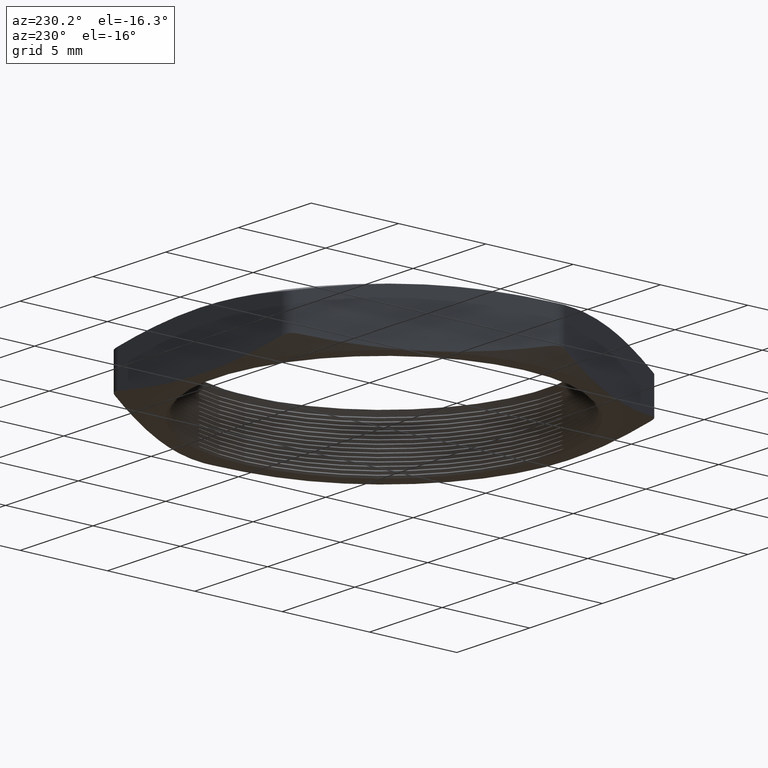
[diagram: clean part render]
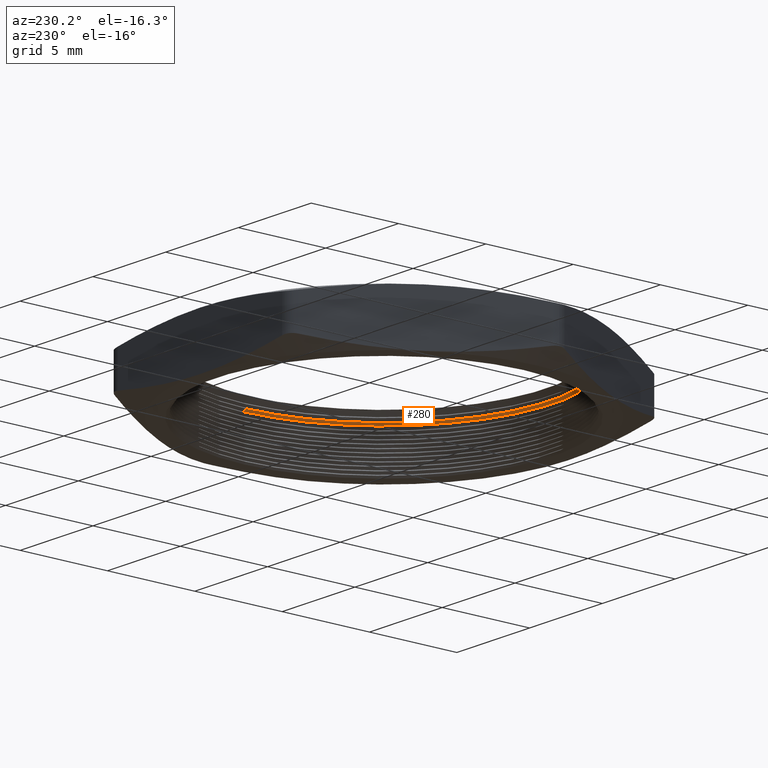
[diagram: same view with one face highlighted and labeled with its STEP entity id]
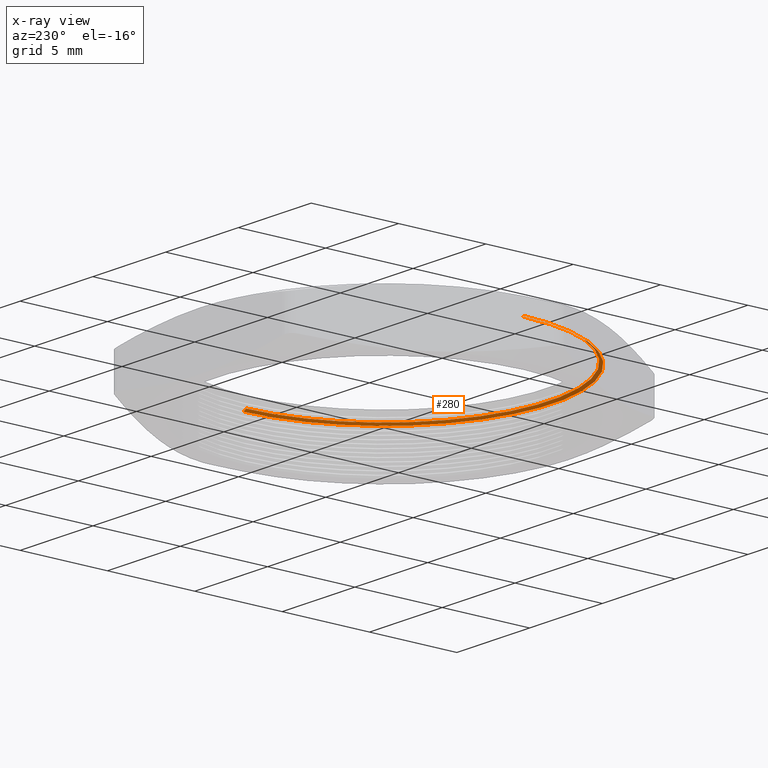
[diagram: x-ray of the same camera — body ghosted, the highlighted face saturated]
A machine part, auxiliary view. The second image highlights one B-rep face of the part: STEP entity #280.
The next image is the same camera in x-ray: the body ghosted, the highlighted face saturated — about 14% of this face is hidden behind the body in this view.
In plain terms, the highlighted conical surface has half-angle 60 deg.
Its self-contained STEP definition (entity closure, byte-faithful):
#189 = VERTEX_POINT ( 'NONE', #470 ) ;
#276 = EDGE_CURVE ( 'NONE', #277, #189, #629, .T. ) ;
#277 = VERTEX_POINT ( 'NONE', #624 ) ;
#280 = ADVANCED_FACE ( 'NONE', ( #619 ), #617, .F. ) ;
#281 = EDGE_LOOP ( 'NONE', ( #282, #286, #288, #289 ) ) ;
#282 = ORIENTED_EDGE ( 'NONE', *, *, #283, .F. ) ;
#283 = EDGE_CURVE ( 'NONE', #284, #285, #612, .T. ) ;
#284 = VERTEX_POINT ( 'NONE', #672 ) ;
#285 = VERTEX_POINT ( 'NONE', #671 ) ;
#286 = ORIENTED_EDGE ( 'NONE', *, *, #287, .T. ) ;
#287 = EDGE_CURVE ( 'NONE', #284, #277, #670, .T. ) ;
#288 = ORIENTED_EDGE ( 'NONE', *, *, #276, .T. ) ;
#289 = ORIENTED_EDGE ( 'NONE', *, *, #329, .F. ) ;
#329 = EDGE_CURVE ( 'NONE', #285, #189, #709, .T. ) ;
#470 = CARTESIAN_POINT ( 'NONE',  ( -0.3799999999999999500, 0.0000000000000000000, 0.09533974596215581700 ) ) ;
#611 = AXIS2_PLACEMENT_3D ( 'NONE', #618, #674, #673 ) ;
#612 = CIRCLE ( 'NONE', #611, 0.3730717967697244100 ) ;
#613 = DIRECTION ( 'NONE',  ( -1.000000000000000000, 0.0000000000000000000, 0.0000000000000000000 ) ) ;
#614 = DIRECTION ( 'NONE',  ( 0.0000000000000000000, 0.0000000000000000000, -1.000000000000000000 ) ) ;
#615 = CARTESIAN_POINT ( 'NONE',  ( 0.0000000000000000000, 0.0000000000000000000, 0.09533974596215581700 ) ) ;
#616 = AXIS2_PLACEMENT_3D ( 'NONE', #615, #614, #613 ) ;
#617 = CONICAL_SURFACE ( 'NONE', #616, 0.3799999999999999500, 1.047197551196607200 ) ;
#618 = CARTESIAN_POINT ( 'NONE',  ( 0.0000000000000000000, 0.0000000000000000000, 0.09933974596215576500 ) ) ;
#619 = FACE_OUTER_BOUND ( 'NONE', #281, .T. ) ;
#624 = CARTESIAN_POINT ( 'NONE',  ( 0.3799999999999999500, 4.653657836759941700E-017, 0.09533974596215581700 ) ) ;
#625 = DIRECTION ( 'NONE',  ( -1.000000000000000000, 0.0000000000000000000, 0.0000000000000000000 ) ) ;
#626 = DIRECTION ( 'NONE',  ( 0.0000000000000000000, 0.0000000000000000000, -1.000000000000000000 ) ) ;
#627 = CARTESIAN_POINT ( 'NONE',  ( 0.0000000000000000000, 0.0000000000000000000, 0.09533974596215581700 ) ) ;
#628 = AXIS2_PLACEMENT_3D ( 'NONE', #627, #626, #625 ) ;
#629 = CIRCLE ( 'NONE', #628, 0.3799999999999999500 ) ;
#667 = DIRECTION ( 'NONE',  ( 0.8660254037844432600, 1.060575238724912700E-016, -0.4999999999999919000 ) ) ;
#668 = VECTOR ( 'NONE', #667, 39.37007874015748100 ) ;
#669 = CARTESIAN_POINT ( 'NONE',  ( 0.3799999999999999500, 4.653657836759941700E-017, 0.09533974596215581700 ) ) ;
#670 = LINE ( 'NONE', #669, #668 ) ;
#671 = CARTESIAN_POINT ( 'NONE',  ( -0.3730717967697244100, 4.611234827210945200E-017, 0.09933974596215576500 ) ) ;
#672 = CARTESIAN_POINT ( 'NONE',  ( 0.3730717967697244100, 0.0000000000000000000, 0.09933974596215576500 ) ) ;
#673 = DIRECTION ( 'NONE',  ( -1.000000000000000000, 0.0000000000000000000, 0.0000000000000000000 ) ) ;
#674 = DIRECTION ( 'NONE',  ( 0.0000000000000000000, 0.0000000000000000000, -1.000000000000000000 ) ) ;
#706 = DIRECTION ( 'NONE',  ( -0.8660254037844432600, 0.0000000000000000000, -0.4999999999999919000 ) ) ;
#707 = VECTOR ( 'NONE', #706, 39.37007874015748100 ) ;
#708 = CARTESIAN_POINT ( 'NONE',  ( -0.3799999999999999500, 0.0000000000000000000, 0.09533974596215581700 ) ) ;
#709 = LINE ( 'NONE', #708, #707 ) ;